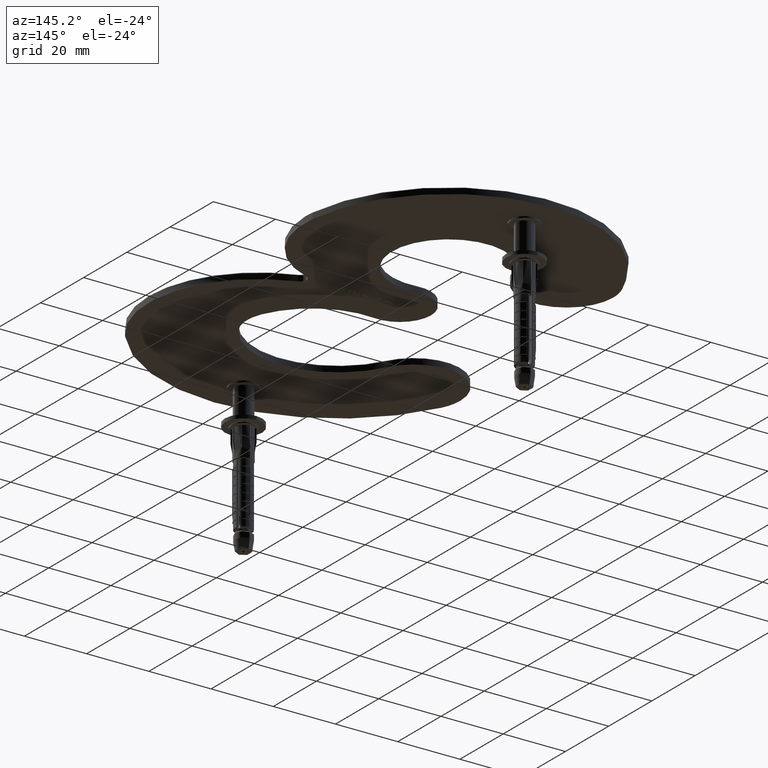
[diagram: clean part render]
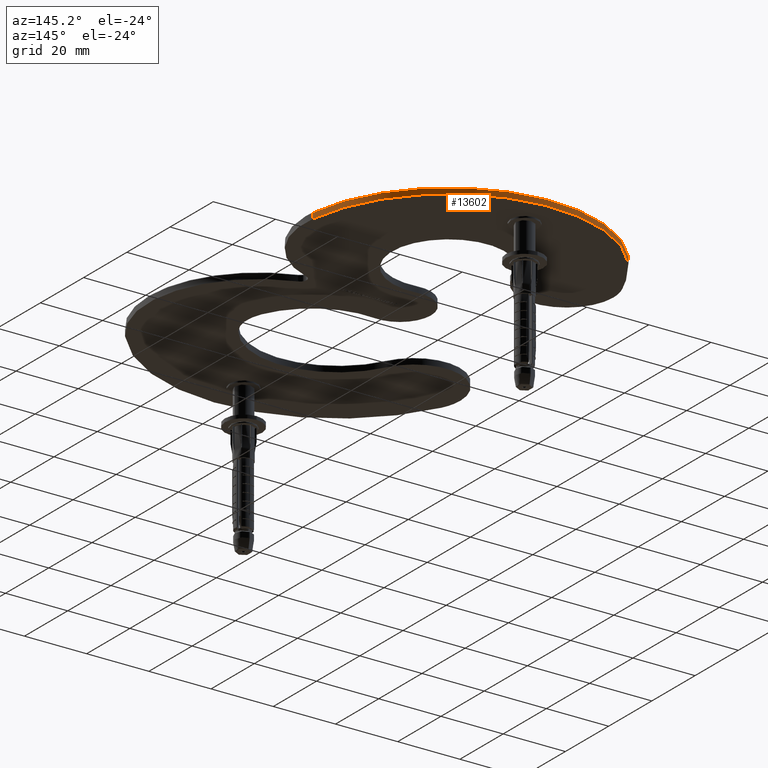
[diagram: same view with one face highlighted and labeled with its STEP entity id]
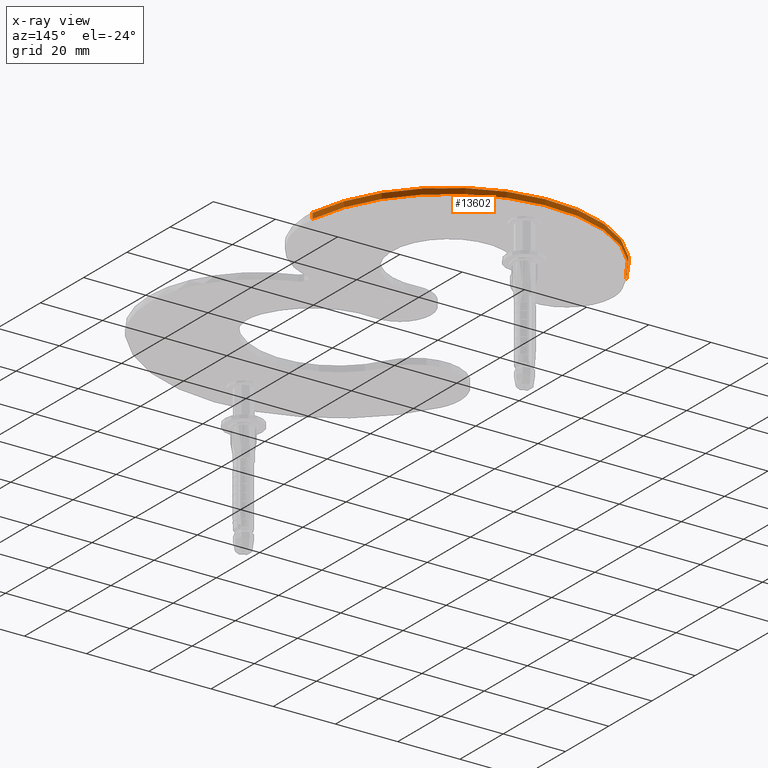
[diagram: x-ray of the same camera — body ghosted, the highlighted face saturated]
A machine part, auxiliary view. The second image highlights one B-rep face of the part: STEP entity #13602.
The next image is the same camera in x-ray: the body ghosted, the highlighted face saturated — about 0% of this face is hidden behind the body in this view.
In plain terms, the highlighted cylindrical surface (partial cylindrical patch) has radius 47.62 mm, axis along (-0, -0, -1).
Its self-contained STEP definition (entity closure, byte-faithful):
#613 = CARTESIAN_POINT ( 'NONE',  ( 47.32720738477262046, 112.6525554675810952, 1.750000000000000000 ) ) ;
#1060 = VECTOR ( 'NONE', #3199, 1000.000000000000000 ) ;
#2964 = VERTEX_POINT ( 'NONE', #11306 ) ;
#3199 = DIRECTION ( 'NONE',  ( -0.000000000000000000, -0.000000000000000000, -1.000000000000000000 ) ) ;
#3560 = AXIS2_PLACEMENT_3D ( 'NONE', #11283, #14383, #35742 ) ;
#4580 = CYLINDRICAL_SURFACE ( 'NONE', #25867, 47.61999999999995481 ) ;
#4994 = CARTESIAN_POINT ( 'NONE',  ( 47.32720738477262046, 112.6525554675810952, 0.000000000000000000 ) ) ;
#5204 = LINE ( 'NONE', #11839, #9998 ) ;
#6157 = EDGE_CURVE ( 'NONE', #8570, #26266, #35203, .T. ) ;
#6284 = EDGE_LOOP ( 'NONE', ( #26767, #37738, #20025, #32941 ) ) ;
#8570 = VERTEX_POINT ( 'NONE', #23672 ) ;
#8637 = VERTEX_POINT ( 'NONE', #4994 ) ;
#9998 = VECTOR ( 'NONE', #36414, 1000.000000000000000 ) ;
#11283 = CARTESIAN_POINT ( 'NONE',  ( 0.000000000000000000, 107.3800000000000097, 1.750000000000000000 ) ) ;
#11306 = CARTESIAN_POINT ( 'NONE',  ( -43.29799424902852678, 127.2029184029771187, 0.000000000000000000 ) ) ;
#11839 = CARTESIAN_POINT ( 'NONE',  ( -43.29799424902852678, 127.2029184029771187, 2.000000000000000000 ) ) ;
#11922 = EDGE_CURVE ( 'NONE', #8570, #2964, #5204, .T. ) ;
#12976 = DIRECTION ( 'NONE',  ( -0.000000000000000000, -0.000000000000000000, -1.000000000000000000 ) ) ;
#13602 = ADVANCED_FACE ( 'NONE', ( #18090 ), #4580, .T. ) ;
#14383 = DIRECTION ( 'NONE',  ( -0.000000000000000000, -0.000000000000000000, -1.000000000000000000 ) ) ;
#15889 = CARTESIAN_POINT ( 'NONE',  ( 0.000000000000000000, 107.3800000000000097, 0.000000000000000000 ) ) ;
#16205 = EDGE_CURVE ( 'NONE', #26266, #8637, #25610, .T. ) ;
#18090 = FACE_OUTER_BOUND ( 'NONE', #6284, .T. ) ;
#18958 = CARTESIAN_POINT ( 'NONE',  ( 47.32720738477262046, 112.6525554675810952, 2.000000000000000000 ) ) ;
#20025 = ORIENTED_EDGE ( 'NONE', *, *, #16205, .T. ) ;
#21472 = AXIS2_PLACEMENT_3D ( 'NONE', #15889, #30593, #27253 ) ;
#23672 = CARTESIAN_POINT ( 'NONE',  ( -43.29799424902852678, 127.2029184029771187, 1.750000000000000000 ) ) ;
#25610 = LINE ( 'NONE', #18958, #1060 ) ;
#25867 = AXIS2_PLACEMENT_3D ( 'NONE', #37428, #12976, #37559 ) ;
#26266 = VERTEX_POINT ( 'NONE', #613 ) ;
#26767 = ORIENTED_EDGE ( 'NONE', *, *, #11922, .F. ) ;
#27253 = DIRECTION ( 'NONE',  ( 1.000000000000000000, 0.000000000000000000, 0.000000000000000000 ) ) ;
#30156 = CIRCLE ( 'NONE', #21472, 47.61999999999995481 ) ;
#30593 = DIRECTION ( 'NONE',  ( 0.000000000000000000, 0.000000000000000000, 1.000000000000000000 ) ) ;
#32941 = ORIENTED_EDGE ( 'NONE', *, *, #34783, .T. ) ;
#34783 = EDGE_CURVE ( 'NONE', #8637, #2964, #30156, .T. ) ;
#35203 = CIRCLE ( 'NONE', #3560, 47.61999999999995481 ) ;
#35742 = DIRECTION ( 'NONE',  ( 1.000000000000000000, 0.000000000000000000, 0.000000000000000000 ) ) ;
#36414 = DIRECTION ( 'NONE',  ( -0.000000000000000000, -0.000000000000000000, -1.000000000000000000 ) ) ;
#37428 = CARTESIAN_POINT ( 'NONE',  ( 0.000000000000000000, 107.3800000000000097, 2.000000000000000000 ) ) ;
#37559 = DIRECTION ( 'NONE',  ( -1.000000000000000000, 0.000000000000000000, 0.000000000000000000 ) ) ;
#37738 = ORIENTED_EDGE ( 'NONE', *, *, #6157, .T. ) ;